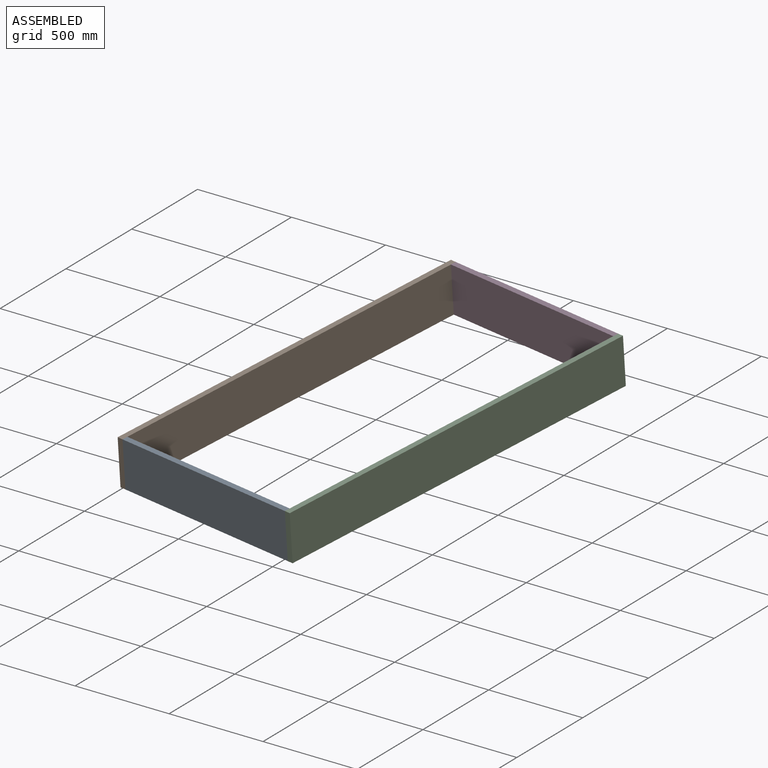
[diagram: assembled view]
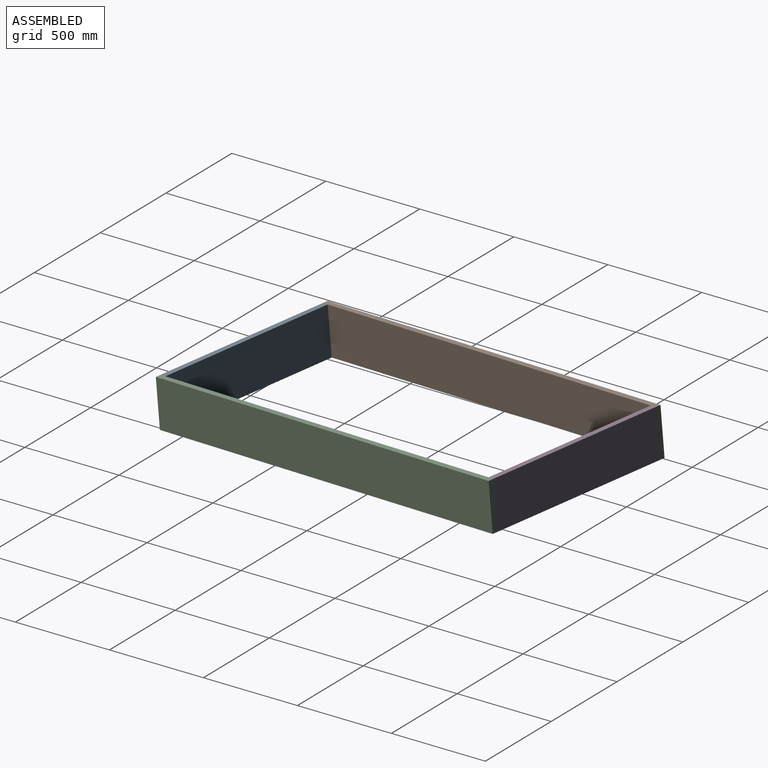
[diagram: assembled view, second angle]
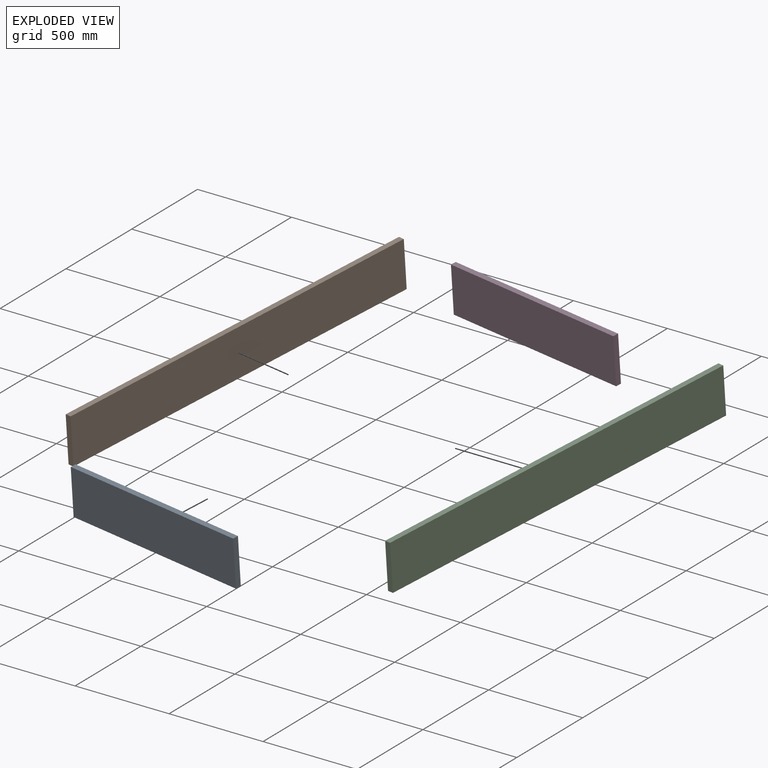
[diagram: exploded view]
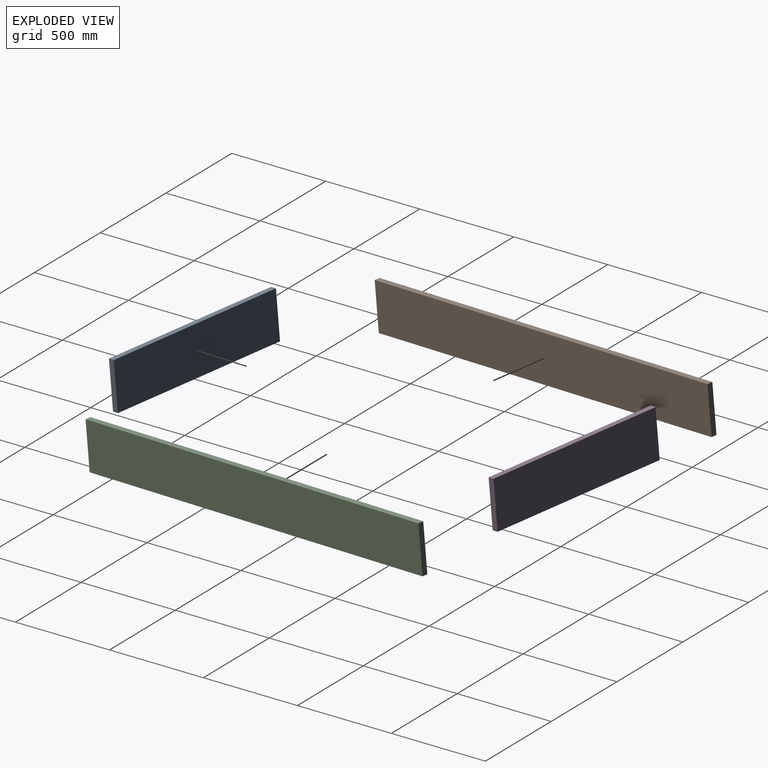
[diagram: exploded view, second angle]
ASSEMBLY  parts=4 mates=9
PART A: 6 faces, bbox 30x1000x250 mm
  f0: plane 250x30mm, normal (0,1,0), area 7500mm2, adj f1,f3,f4,f5
  f1: plane 1000x250mm, normal (-1,0,0), area 250000mm2, adj f0,f2,f4,f5
  f2: plane 250x30mm, normal (0,-1,0), area 7500mm2, adj f1,f3,f4,f5
  f3: plane 1000x250mm, normal (1,0,0), area 250000mm2, adj f0,f2,f4,f5
  f4: plane 1000x30mm, normal (0,0,1), area 30000mm2, adj f0,f1,f2,f3
  f5: plane 1000x30mm, normal (0,0,-1), area 30000mm2, adj f0,f1,f2,f3
PART B: 6 faces, bbox 30x2060x250 mm
  f0: plane 250x30mm, normal (0,1,0), area 7500mm2, adj f1,f3,f4,f5
  f1: plane 2060x250mm, normal (-1,0,0), area 515000mm2, adj f0,f2,f4,f5
  f2: plane 250x30mm, normal (0,-1,0), area 7500mm2, adj f1,f3,f4,f5
  f3: plane 2060x250mm, normal (1,0,0), area 515000mm2, adj f0,f2,f4,f5
  f4: plane 2060x30mm, normal (0,0,1), area 61800mm2, adj f0,f1,f2,f3
  f5: plane 2060x30mm, normal (0,0,-1), area 61800mm2, adj f0,f1,f2,f3
PART C: same geometry as B
PART D: same geometry as A
PLACE A rot(axis=(0.04,0.04,-1),100.1deg) t=(-887.03,-1446.69,-796.47)mm
PLACE B rot(axis=(0.45,0.04,-0.89),11.2deg) t=(-1201.51,-347.69,-700.32)mm
PLACE C rot(axis=(0.45,0.04,-0.89),11.2deg) t=(-187.16,-525.87,-715.91)mm
PLACE D rot(axis=(0.04,0.04,-1),100.1deg) t=(-534.52,544.86,-622.23)mm
MATE planar C.f2 <-> A.f3  axis (-0.17,-0.98,-0.09) through (-381.11,-1546.45,-679.72)mm
MATE planar B.f2 <-> A.f3  axis (-0.17,-0.98,-0.09) through (-1395.46,-1368.28,-664.13)mm
MATE planar A.f4 <-> B.f4  axis (0,-0.09,1) through (-885.68,-1453.54,-546.11)mm
MATE planar B.f4 <-> D.f4  axis (0,-0.09,1) through (-1216.6,-368.68,-451.2)mm
MATE planar B.f3 <-> A.f2  axis (0.98,-0.17,-0.02) through (-1201.83,-360.38,-575.95)mm
MATE planar B.f0 <-> D.f1  axis (0.17,0.98,0.09) through (-1052.51,666.2,-611.62)mm
MATE planar B.f3 <-> D.f2  axis (0.98,-0.17,-0.02) through (-1201.83,-360.38,-575.95)mm
MATE planar C.f1 <-> A.f0  axis (-0.98,0.17,0.02) through (-217.02,-533.37,-591.09)mm
MATE planar C.f4 <-> A.f4  axis (0,-0.09,1) through (-202.25,-546.86,-466.79)mm
